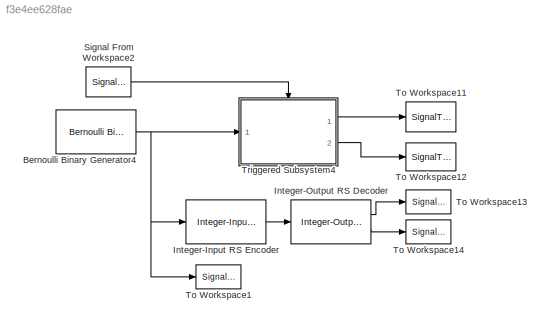
MODEL slx_f3e4ee628fae
KIND model
BLOCK [Reference] Bernoulli Binary Generator4  REF=commrandsrc2/Bernoulli Binary
Generator
  P = 0.5
  Ports = [0, 1]
  SourceBlock = commrandsrc2/Bernoulli Binary\nGenerator
  SourceType = Bernoulli Binary Generator
  Ts = 0.1
  frameBased = on
  orient = off
  outDataType = double
  sampPerFrame = 3
  seed = 61
BLOCK [Reference] Integer-Input RS Encoder  REF=commblkcod2/Integer-Input
RS Encoder
  Ports = [1, 1]
  SourceBlock = commblkcod2/Integer-Input\nRS Encoder
  SourceType = Integer-Input RS Encoder
  genPoly = rsgenpoly(7,3)
  k = 3
  n = 7
  prPoly = [1 0 1 1]
  punctVec = [ones(2,1); zeros(2,1)]
  specGenPoly = off
  specPrimPoly = off
  specPuncture = off
BLOCK [Reference] Integer-Output RS Decoder  REF=commblkcod2/Integer-Output
RS Decoder
  Ports = [1, 2]
  SourceBlock = commblkcod2/Integer-Output\nRS Decoder
  SourceType = Integer-Output RS Decoder
  genPoly = rsgenpoly(7,3)
  k = 3
  n = 7
  prPoly = [1 0 1 1]
  punctVec = [ones(2,1); zeros(2,1)]
  showNumErr = on
  specErasurePort = off
  specGenPoly = off
  specPrimPoly = off
  specPuncture = off
BLOCK [Reference] Signal From Workspace2  REF=dspsrcs4/Signal From
Workspace
  OutputAfterFinalValue = Cyclic repetition
  Ports = [0, 1]
  SourceBlock = dspsrcs4/Signal From\nWorkspace
  SourceType = Signal From Workspace
  Ts = 0.3
  X = [0 1]
  ignoreOrWarnInputAndFrameLengths = off
  nsamps = 1
BLOCK [SignalToWorkspace] To Workspace1
  MaxDataPoints = inf
  Ports = [1]
  VariableName = input
BLOCK [SignalToWorkspace] To Workspace11
  MaxDataPoints = inf
  Ports = [1]
  VariableName = trig_out
BLOCK [SignalToWorkspace] To Workspace12
  MaxDataPoints = inf
  Ports = [1]
  VariableName = trig_out1
BLOCK [SignalToWorkspace] To Workspace13
  MaxDataPoints = inf
  Ports = [1]
  VariableName = sim_out
BLOCK [SignalToWorkspace] To Workspace14
  MaxDataPoints = inf
  Ports = [1]
  VariableName = sim_out1
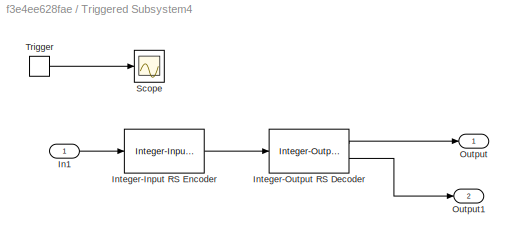
BLOCK [SubSystem] Triggered Subsystem4
  Ports = [1, 2, 0, 1]
  RequestExecContextInheritance = off
  TreatAsAtomicUnit = on
BLOCK [Inport] Triggered Subsystem4/In1
  IconDisplay = Port number
BLOCK [Reference] Triggered Subsystem4/Integer-Input RS Encoder  REF=commblkcod2/Integer-Input
RS Encoder
  Ports = [1, 1]
  SourceBlock = commblkcod2/Integer-Input\nRS Encoder
  SourceType = Integer-Input RS Encoder
  genPoly = rsgenpoly(7,3)
  k = 3
  n = 7
  prPoly = [1 0 1 1]
  punctVec = [ones(2,1); zeros(2,1)]
  specGenPoly = off
  specPrimPoly = off
  specPuncture = off
BLOCK [Reference] Triggered Subsystem4/Integer-Output RS Decoder  REF=commblkcod2/Integer-Output
RS Decoder
  Ports = [1, 2]
  SourceBlock = commblkcod2/Integer-Output\nRS Decoder
  SourceType = Integer-Output RS Decoder
  genPoly = rsgenpoly(7,3)
  k = 3
  n = 7
  prPoly = [1 0 1 1]
  punctVec = [ones(2,1); zeros(2,1)]
  showNumErr = on
  specErasurePort = off
  specGenPoly = off
  specPrimPoly = off
  specPuncture = off
BLOCK [Outport] Triggered Subsystem4/Output
  IconDisplay = Port number
BLOCK [Outport] Triggered Subsystem4/Output1
  IconDisplay = Port number
  Port = 2
BLOCK [Scope] Triggered Subsystem4/Scope
  DataFormat = StructureWithTime
  Floating = off
  NumInputPorts = 1
  Ports = [1]
  SampleTime = 0
  ShowLegends = off
BLOCK [TriggerPort] Triggered Subsystem4/Trigger
  Ports = [0, 1]
  ShowOutputPort = on
NET Bernoulli Binary Generator4:1 -> Integer-Input RS Encoder:1, To Workspace1:1, Triggered Subsystem4:1
LINE Integer-Input RS Encoder:1 -> Integer-Output RS Decoder:1
LINE Integer-Output RS Decoder:1 -> To Workspace13:1
LINE Integer-Output RS Decoder:2 -> To Workspace14:1
LINE Signal From Workspace2:1 -> Triggered Subsystem4:trigger
LINE Triggered Subsystem4/In1:1 -> Triggered Subsystem4/Integer-Input RS Encoder:1
LINE Triggered Subsystem4/Integer-Input RS Encoder:1 -> Triggered Subsystem4/Integer-Output RS Decoder:1
LINE Triggered Subsystem4/Integer-Output RS Decoder:1 -> Triggered Subsystem4/Output:1
LINE Triggered Subsystem4/Integer-Output RS Decoder:2 -> Triggered Subsystem4/Output1:1
LINE Triggered Subsystem4/Trigger:1 -> Triggered Subsystem4/Scope:1
LINE Triggered Subsystem4:1 -> To Workspace11:1
LINE Triggered Subsystem4:2 -> To Workspace12:1
note: NET lines group one-source signal fan-out (src -> all destinations, sorted); 1:1 wires keep LINE
